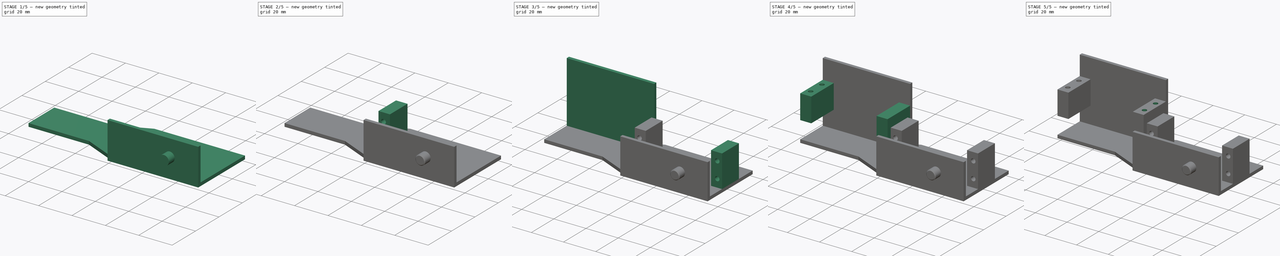
[diagram: build sequence overview — one tinted view per stage of 5, left to right]
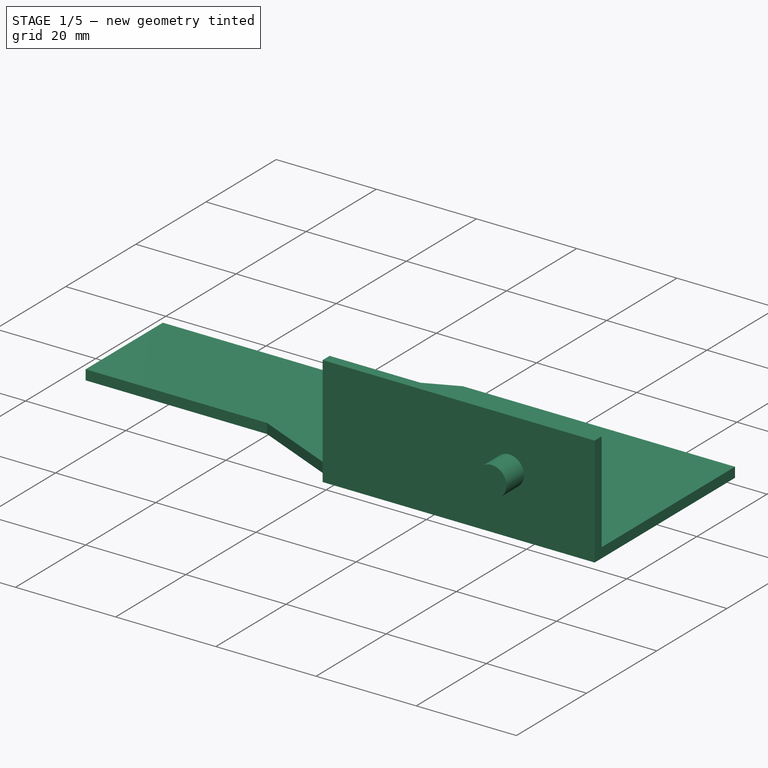
[diagram: stage 1 of 5 — iso view after this stage's code; geometry added in this stage tinted green]
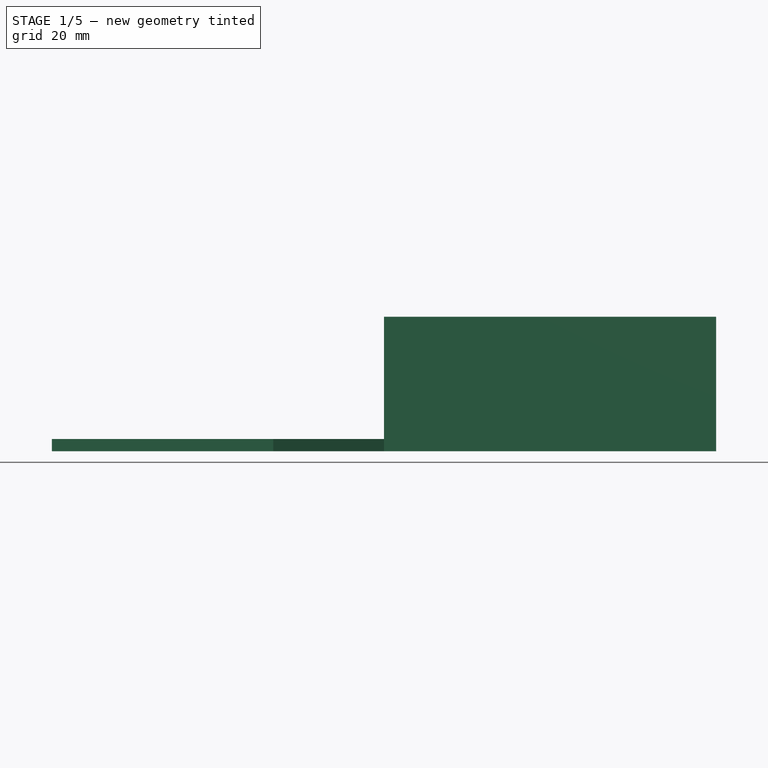
[diagram: stage 1 of 5 — front view after this stage's code; geometry added in this stage tinted green]
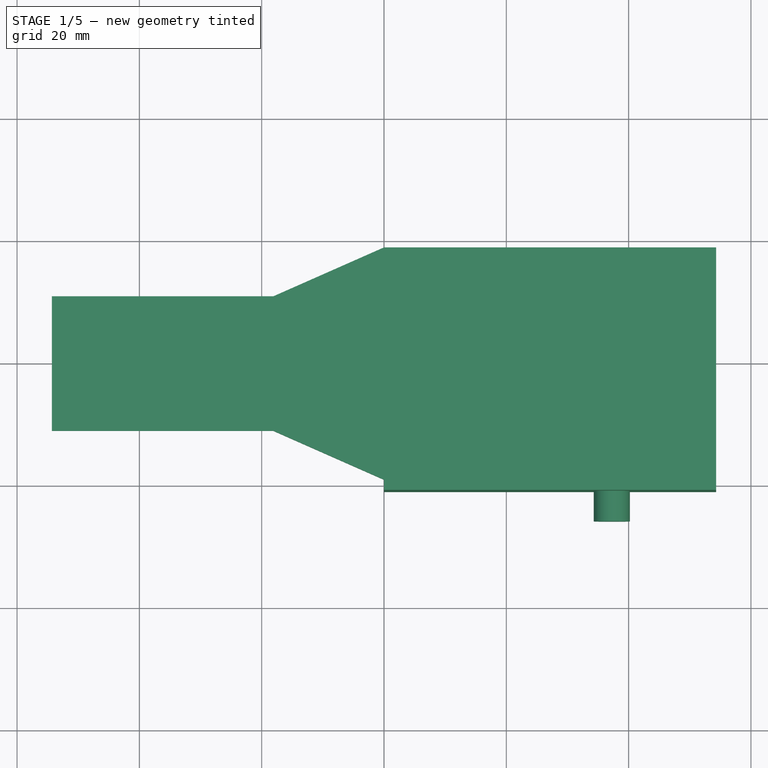
[diagram: stage 1 of 5 — top view after this stage's code; geometry added in this stage tinted green]
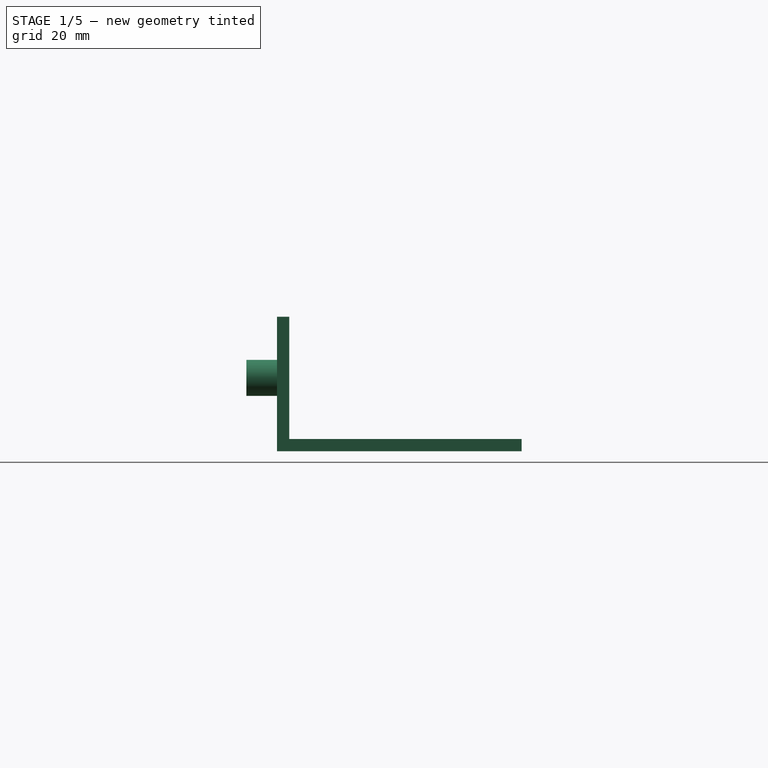
[diagram: stage 1 of 5 — right view after this stage's code; geometry added in this stage tinted green]
FCSTD DOCUMENT  (FreeCAD 0.20R29177 +426 (Git))
Label: 9R_upper_arm
License: All rights reserved
LicenseURL: http://en.wikipedia.org/wiki/All_rights_reserved
objects: Sketcher::SketchObject×13, PartDesign::Pad×9, PartDesign::Pocket×4, PartDesign::Chamfer×2, Spreadsheet::Sheet×1, PartDesign::Body×1
note: 44 computed .brp shape members not serialized (recipe doc carries the construction recipe); baked Part::Feature solids carry a one-line shape summary decoded from their .brp

FEATURE [Spreadsheet::Sheet] Spreadsheet
  cells = A1=tolerance; B1(tolerance)=0.2; A2=thickness; B2(thickness)=2; A3=servo_outer_x; B3(servo_outer_x)=54.3; A4=servo_inner_x; B4(servo_inner_x)=40.2; A5=servo_y; B5(servo_y)=38; D5=sketch 41,5 real 38,0; A6=servo_z; B6(servo_z)=20; A7=foothold_y_len; B7(foothold_y_len)=15; A8=foothold_y_pos; B8(foothold_y_pos)==25.8 + B2; C8=c; D8=sketch 27.8 real 25,1; A9=foothold_z_len; B9(foothold_z_len)==B6; C9=c; A10=foothold_x_len; B10(foothold_x_len)==(B3 - B4) / 2 - B1; C10=c; A11=upper_hole_z_pos; B11(upper_hole_z_pos)==15 + B2; C11=c; A12=lower_hole_z_pos; B12(lower_hole_z_pos)==5 + B2; C12=c; A13=hole_x_pos; B13(hole_x_pos)=3; A14=hole_diameter; B14(hole_diameter)=2.8; A15=axis_x_pos; B15(axis_x_pos)=37.25; A16=axis_z_pos; B16(axis_z_pos)==10 + B2; A17=axis_y_pos; B17(axis_y_pos)=0; A18=axis_diameter; B18(axis_diameter)=5.9; A19=axis_length; B19(axis_length)=5; A20=plate_y_dim; B20(plate_y_dim)==B5 + B2; C20=c
FEATURE [Sketcher::SketchObject] Sketch
  FullyConstrained = true
  MapMode = 5
  Support = -> [XY_Plane]
  expr: Constraints[12] = Spreadsheet.servo_outer_x
  expr: Constraints[14] = Spreadsheet.servo_y
  expr: Constraints[17] = Spreadsheet.servo_outer_x
  expr: Constraints[19] = Spreadsheet.servo_z + Spreadsheet.thickness
  expr: Constraints[21] = Spreadsheet.servo_outer_x / 3
  sketch-geometry (8):
    g0: LineSegment StartX=54.3 StartY=19 StartZ=0 EndX=54.3 EndY=-19 EndZ=0
    g1: LineSegment StartX=54.3 StartY=-19 StartZ=0 EndX=0 EndY=-19 EndZ=0
    g2: LineSegment StartX=0 StartY=-19 StartZ=0 EndX=-18.1 EndY=-11 EndZ=0
    g3: LineSegment StartX=-18.1 StartY=-11 StartZ=0 EndX=-54.3 EndY=-11 EndZ=0
    g4: LineSegment StartX=-54.3 StartY=-11 StartZ=0 EndX=-54.3 EndY=11 EndZ=0
    g5: LineSegment StartX=-54.3 StartY=11 StartZ=0 EndX=-18.1 EndY=11 EndZ=0
    g6: LineSegment StartX=-18.1 StartY=11 StartZ=0 EndX=0 EndY=19 EndZ=0
    g7: LineSegment StartX=0 StartY=19 StartZ=0 EndX=54.3 EndY=19 EndZ=0
  constraints (22):
    c: Coincident(g0,g1)
    c: Horizontal(g1)
    c: Coincident(g1,g2)
    c: Coincident(g2,g3)
    c: Horizontal(g3)
    c: Coincident(g3,g4)
    c: Coincident(g4,g5)
    c: Horizontal(g5)
    c: Coincident(g5,g6)
    c: Coincident(g6,g7)
    c: Coincident(g7,g0)
    c: Horizontal(g7)
    c: DistanceX(g7,g7) = 54.3
    c: Equal(g7,g1)
    c: DistanceY(g0,g0) = 38
    c: Symmetric(g0,g0,g-1)
    c: Vertical(g6,g-1)
    c: DistanceX(g4,g-1) = 54.3
    c: Symmetric(g4,g3,g-1)
    c: DistanceY(g3,g4) = 22
    c: Equal(g3,g5)
    c: DistanceX(g2,g1) = 18.1
FEATURE [PartDesign::Pad] Pad  label="BasePlate"
  Direction = (0,0,1)
  Length = 2
  Length2 = 10
  Profile = -> Sketch
  ReferenceAxis = -> Sketch [N_Axis]
  Type = 0
  expr: Length = Spreadsheet.thickness
FEATURE [Sketcher::SketchObject] Sketch002
  ExternalGeometry = -> [Pad]
  FullyConstrained = true
  MapMode = 5
  Placement = pos=(0,-19,0) rot=(1,0,0;1.5708rad)
  Support = -> [Pad]
  expr: Constraints[9] = Spreadsheet.servo_z + Spreadsheet.thickness
  sketch-geometry (4):
    g0: LineSegment StartX=0 StartY=0 StartZ=0 EndX=54.3 EndY=0 EndZ=0
    g1: LineSegment StartX=54.3 StartY=0 StartZ=0 EndX=54.3 EndY=22 EndZ=0
    g2: LineSegment StartX=54.3 StartY=22 StartZ=0 EndX=0 EndY=22 EndZ=0
    g3: LineSegment StartX=0 StartY=22 StartZ=0 EndX=0 EndY=0 EndZ=0
  constraints (10):
    c: Coincident(g0,g1)
    c: Coincident(g1,g2)
    c: Coincident(g2,g3)
    c: Coincident(g3,g0)
    c: Horizontal(g2)
    c: Vertical(g1)
    c: Vertical(g3)
    c: Coincident(g0,g-1)
    c: Coincident(g-3,g0)
    c: DistanceY(g1,g1) = 22
FEATURE [PartDesign::Pad] Pad001  label="LowerArmBackPlate"
  BaseFeature = -> Pad
  Direction = (0,-1,2e-16)
  Length = 2
  Length2 = 10
  Profile = -> Sketch002
  ReferenceAxis = -> Sketch002 [N_Axis]
  Type = 0
  expr: Length = Spreadsheet.thickness
FEATURE [Sketcher::SketchObject] Sketch003
  FullyConstrained = true
  MapMode = 5
  Placement = pos=(0,-21,3.4e-15) rot=(1,0,0;1.5708rad)
  Support = -> [Pad001]
  expr: Constraints[0] = Spreadsheet.axis_x_pos
  expr: Constraints[1] = Spreadsheet.axis_z_pos
  expr: Constraints[2] = Spreadsheet.axis_diameter
  sketch-geometry (1):
    g0: Circle CenterX=37.25 CenterY=12 CenterZ=0 NormalX=0 NormalY=0 NormalZ=1 AngleXU=0 Radius=2.95
  constraints (3):
    c: DistanceX(g-1,g0) = 37.25
    c: DistanceY(g-1,g0) = 12
    c: Diameter(g0) = 5.9
FEATURE [PartDesign::Pad] Pad002
  BaseFeature = -> Pad001
  Direction = (0,-1,2e-16)
  Length = 5
  Length2 = 10
  Profile = -> Sketch003
  ReferenceAxis = -> Sketch003 [N_Axis]
  Type = 0
  expr: Length = Spreadsheet.axis_length
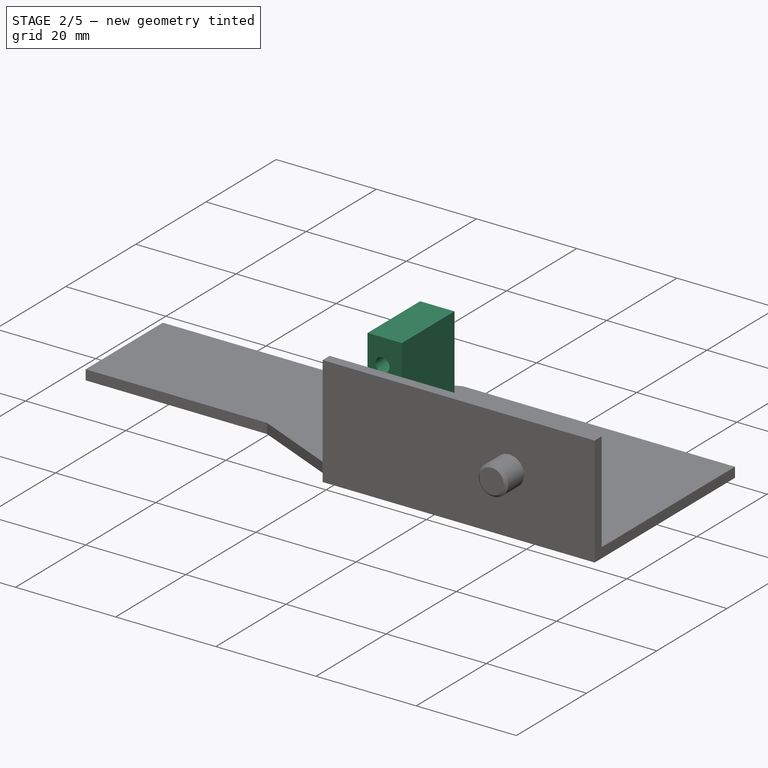
[diagram: stage 2 of 5 — iso view after this stage's code; geometry added in this stage tinted green]
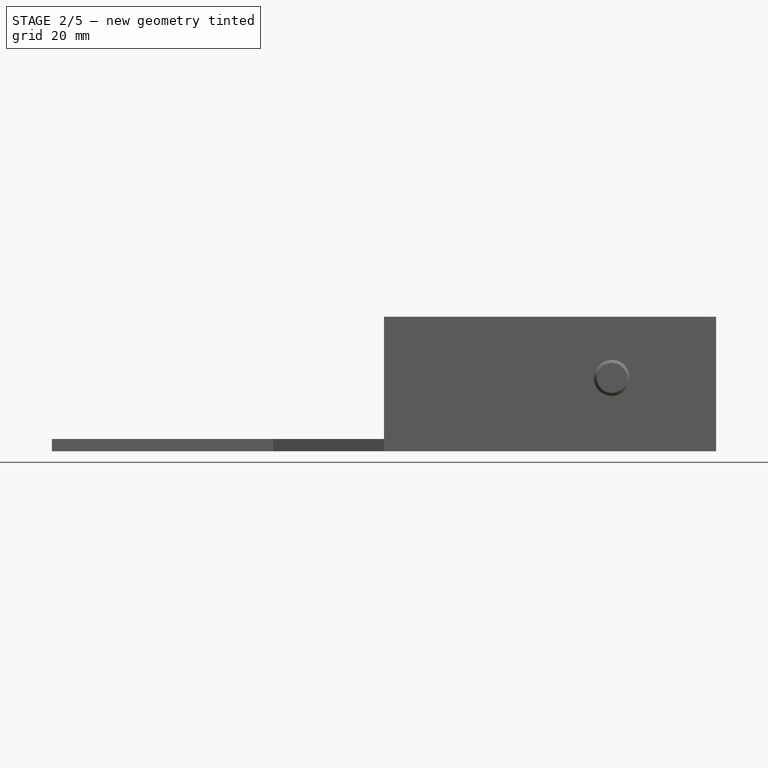
[diagram: stage 2 of 5 — front view after this stage's code; geometry added in this stage tinted green]
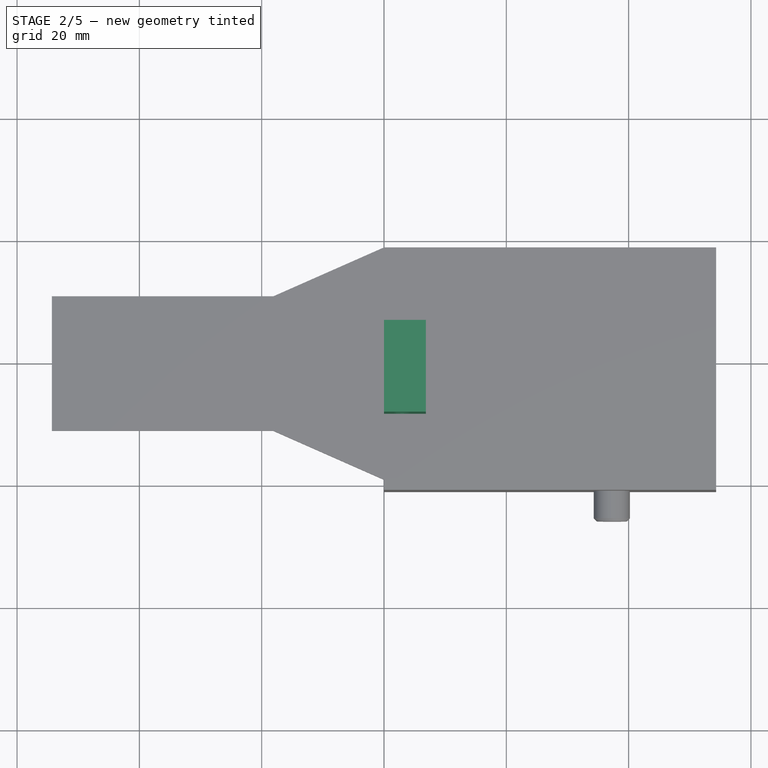
[diagram: stage 2 of 5 — top view after this stage's code; geometry added in this stage tinted green]
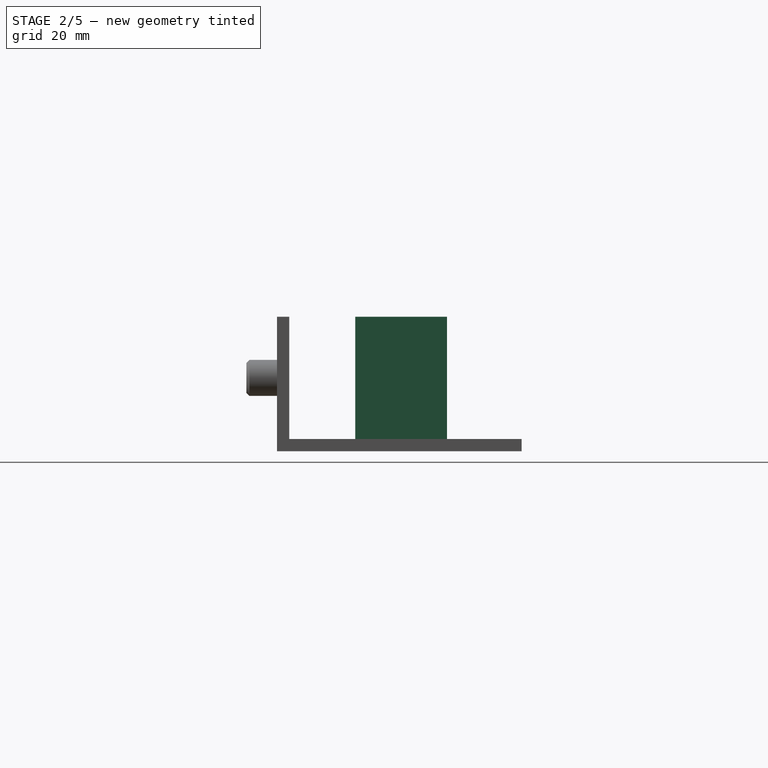
[diagram: stage 2 of 5 — right view after this stage's code; geometry added in this stage tinted green]
FEATURE [PartDesign::Chamfer] Chamfer
  Angle = 45
  Base = -> Pad002 [Face17]
  BaseFeature = -> Pad002
  ChamferType = 0
  FlipDirection = false
  Size = 0.5
  Size2 = 1
  SupportTransform = false
  UseAllEdges = false
FEATURE [Sketcher::SketchObject] Sketch004
  ExternalGeometry = -> [Chamfer]
  FullyConstrained = true
  MapMode = 5
  Placement = pos=(0,0,2) rot=(0,0,1;0rad)
  Support = -> [Chamfer]
  expr: Constraints[10] = Spreadsheet.foothold_y_len
  expr: Constraints[11] = Spreadsheet.foothold_x_len
  expr: Constraints[9] = Spreadsheet.foothold_y_pos
  sketch-geometry (4):
    g0: LineSegment StartX=0 StartY=6.8 StartZ=0 EndX=6.85 EndY=6.8 EndZ=0
    g1: LineSegment StartX=6.85 StartY=6.8 StartZ=0 EndX=6.85 EndY=-8.2 EndZ=0
    g2: LineSegment StartX=6.85 StartY=-8.2 StartZ=0 EndX=0 EndY=-8.2 EndZ=0
    g3: LineSegment StartX=0 StartY=-8.2 StartZ=0 EndX=0 EndY=6.8 EndZ=0
  constraints (12):
    c: Coincident(g0,g1)
    c: Coincident(g1,g2)
    c: Coincident(g2,g3)
    c: Coincident(g3,g0)
    c: Horizontal(g0)
    c: Horizontal(g2)
    c: Vertical(g1)
    c: Vertical(g3)
    c: PointOnObject(g0,g-2)
    c: DistanceY(g-3,g0) = 27.8
    c: DistanceY(g2,g0) = 15
    c: DistanceX(g0,g0) = 6.85
FEATURE [PartDesign::Pad] Pad003
  BaseFeature = -> Chamfer
  Direction = (0,0,1)
  Length = 20
  Length2 = 10
  Profile = -> Sketch004
  ReferenceAxis = -> Sketch004 [N_Axis]
  Type = 0
  expr: Length = Spreadsheet.foothold_z_len
FEATURE [Sketcher::SketchObject] Sketch005
  FullyConstrained = true
  MapMode = 5
  Placement = pos=(0,6.8,0) rot=(0,0.707107,0.707107;3.14159rad)
  Support = -> [Pad003]
  expr: Constraints[0] = Spreadsheet.lower_hole_z_pos
  expr: Constraints[1] = Spreadsheet.upper_hole_z_pos
  expr: Constraints[2] = Spreadsheet.hole_x_pos
  expr: Constraints[5] = Spreadsheet.hole_diameter
  sketch-geometry (2):
    g0: Circle CenterX=-3 CenterY=17 CenterZ=0 NormalX=0 NormalY=0 NormalZ=1 AngleXU=0 Radius=1.4
    g1: Circle CenterX=-3 CenterY=7 CenterZ=0 NormalX=0 NormalY=0 NormalZ=1 AngleXU=0 Radius=1.4
  constraints (6):
    c: DistanceY(g-1,g1) = 7
    c: DistanceY(g-1,g0) = 17
    c: DistanceX(g1,g-1) = 3
    c: Vertical(g1,g0)
    c: Equal(g0,g1)
    c: Diameter(g0) = 2.8
FEATURE [PartDesign::Pocket] Pocket
  BaseFeature = -> Pad003
  Direction = (0,-1,2e-16)
  Length = 15
  Length2 = 5
  Profile = -> Sketch005
  ReferenceAxis = -> Sketch005 [N_Axis]
  Type = 0
  expr: Length = Spreadsheet.foothold_y_len
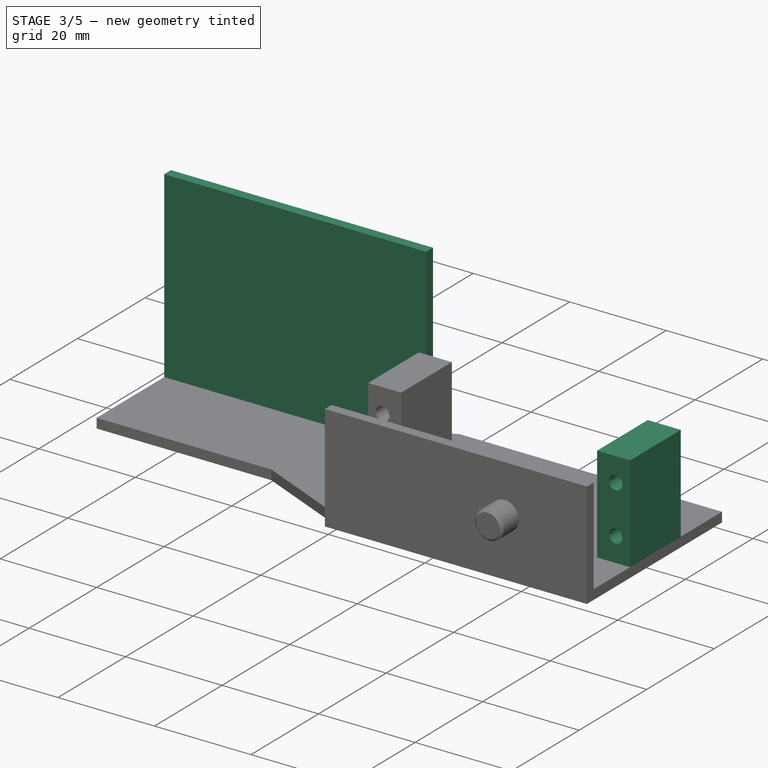
[diagram: stage 3 of 5 — iso view after this stage's code; geometry added in this stage tinted green]
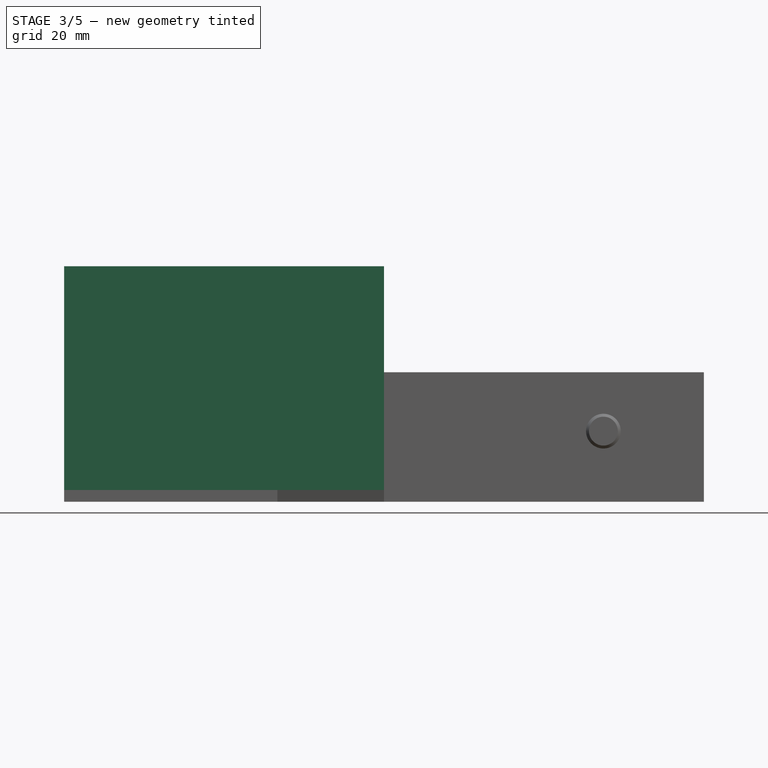
[diagram: stage 3 of 5 — front view after this stage's code; geometry added in this stage tinted green]
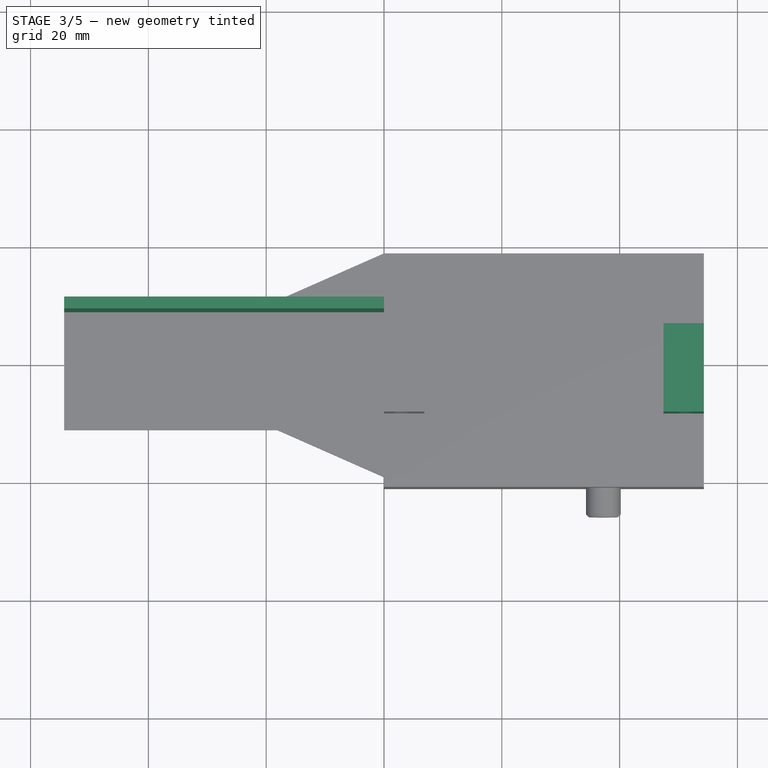
[diagram: stage 3 of 5 — top view after this stage's code; geometry added in this stage tinted green]
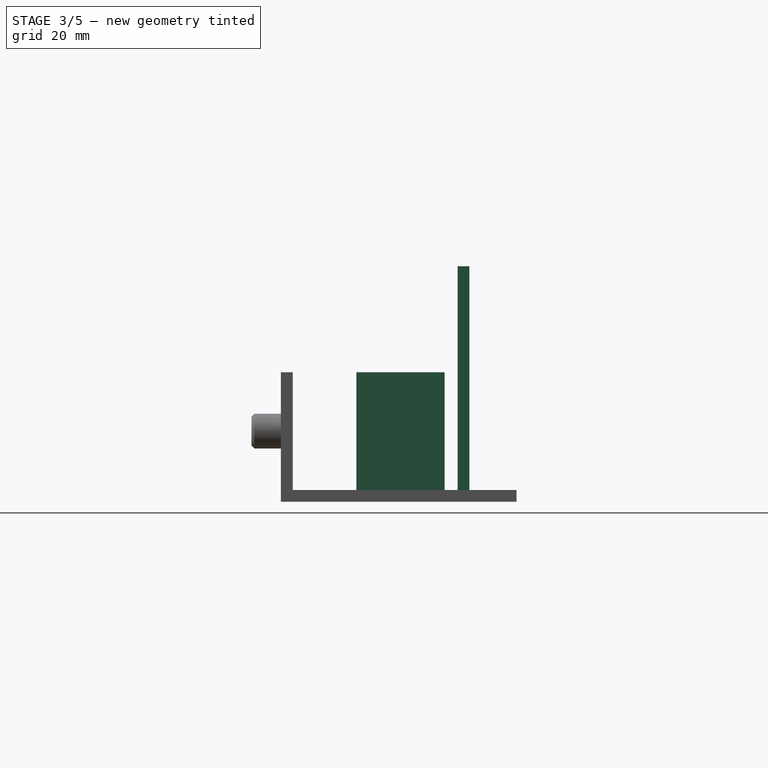
[diagram: stage 3 of 5 — right view after this stage's code; geometry added in this stage tinted green]
FEATURE [Sketcher::SketchObject] Sketch006
  ExternalGeometry = -> [Pocket]
  FullyConstrained = true
  MapMode = 5
  Placement = pos=(0,0,2) rot=(0,0,1;0rad)
  Support = -> [Pocket]
  expr: Constraints[10] = Spreadsheet.foothold_y_len
  expr: Constraints[11] = Spreadsheet.foothold_x_len
  expr: Constraints[9] = Spreadsheet.foothold_y_pos
  sketch-geometry (4):
    g0: LineSegment StartX=47.45 StartY=6.8 StartZ=0 EndX=54.3 EndY=6.8 EndZ=0
    g1: LineSegment StartX=54.3 StartY=6.8 StartZ=0 EndX=54.3 EndY=-8.2 EndZ=0
    g2: LineSegment StartX=54.3 StartY=-8.2 StartZ=0 EndX=47.45 EndY=-8.2 EndZ=0
    g3: LineSegment StartX=47.45 StartY=-8.2 StartZ=0 EndX=47.45 EndY=6.8 EndZ=0
  constraints (12):
    c: Coincident(g0,g1)
    c: Coincident(g1,g2)
    c: Coincident(g2,g3)
    c: Coincident(g3,g0)
    c: Horizontal(g0)
    c: Horizontal(g2)
    c: Vertical(g1)
    c: Vertical(g3)
    c: PointOnObject(g0,g-4)
    c: DistanceY(g-3,g0) = 27.8
    c: DistanceY(g2,g0) = 15
    c: DistanceX(g2,g1) = 6.85
FEATURE [PartDesign::Pad] Pad004
  BaseFeature = -> Pocket
  Direction = (0,0,1)
  Length = 20
  Length2 = 10
  Profile = -> Sketch006
  ReferenceAxis = -> Sketch006 [N_Axis]
  Type = 0
  expr: Length = Spreadsheet.servo_z
FEATURE [Sketcher::SketchObject] Sketch007
  ExternalGeometry = -> [Pad004]
  FullyConstrained = true
  MapMode = 5
  Placement = pos=(0,6.8,0) rot=(0,0.707107,0.707107;3.14159rad)
  Support = -> [Pad004]
  expr: Constraints[2] = Spreadsheet.hole_diameter
  expr: Constraints[3] = Spreadsheet.hole_x_pos
  expr: Constraints[4] = Spreadsheet.lower_hole_z_pos
  expr: Constraints[5] = Spreadsheet.upper_hole_z_pos
  sketch-geometry (2):
    g0: Circle CenterX=-51.3 CenterY=17 CenterZ=0 NormalX=0 NormalY=0 NormalZ=1 AngleXU=0 Radius=1.4
    g1: Circle CenterX=-51.3 CenterY=7 CenterZ=0 NormalX=0 NormalY=0 NormalZ=1 AngleXU=0 Radius=1.4
  constraints (6):
    c: Vertical(g0,g1)
    c: Equal(g0,g1)
    c: Diameter(g0) = 2.8
    c: DistanceX(g-3,g1) = 3
    c: DistanceY(g-3,g1) = 7
    c: DistanceY(g-3,g0) = 17
FEATURE [PartDesign::Pocket] Pocket001
  BaseFeature = -> Pad004
  Direction = (0,-1,2e-16)
  Length = 15
  Length2 = 5
  Profile = -> Sketch007
  ReferenceAxis = -> Sketch007 [N_Axis]
  Type = 0
  expr: Length = Spreadsheet.foothold_y_len
FEATURE [Sketcher::SketchObject] Sketch008
  ExternalGeometry = -> [Pocket001]
  FullyConstrained = true
  MapMode = 5
  Placement = pos=(0,0,2) rot=(0,0,1;0rad)
  Support = -> [Pocket001]
  expr: Constraints[10] = Spreadsheet.thickness
  sketch-geometry (4):
    g0: LineSegment StartX=-54.3 StartY=11 StartZ=0 EndX=0 EndY=11 EndZ=0
    g1: LineSegment StartX=0 StartY=11 StartZ=0 EndX=0 EndY=9 EndZ=0
    g2: LineSegment StartX=0 StartY=9 StartZ=0 EndX=-54.3 EndY=9 EndZ=0
    g3: LineSegment StartX=-54.3 StartY=9 StartZ=0 EndX=-54.3 EndY=11 EndZ=0
  constraints (11):
    c: Coincident(g0,g1)
    c: Coincident(g1,g2)
    c: Coincident(g2,g3)
    c: Coincident(g3,g0)
    c: Horizontal(g0)
    c: Horizontal(g2)
    c: Vertical(g1)
    c: Vertical(g3)
    c: Coincident(g0,g-3)
    c: Vertical(g1,g-1)
    c: DistanceY(g1,g0) = 2
FEATURE [PartDesign::Pad] Pad005
  BaseFeature = -> Pocket001
  Direction = (0,0,1)
  Length = 38
  Length2 = 10
  Profile = -> Sketch008
  ReferenceAxis = -> Sketch008 [N_Axis]
  Type = 0
  expr: Length = Spreadsheet.servo_y
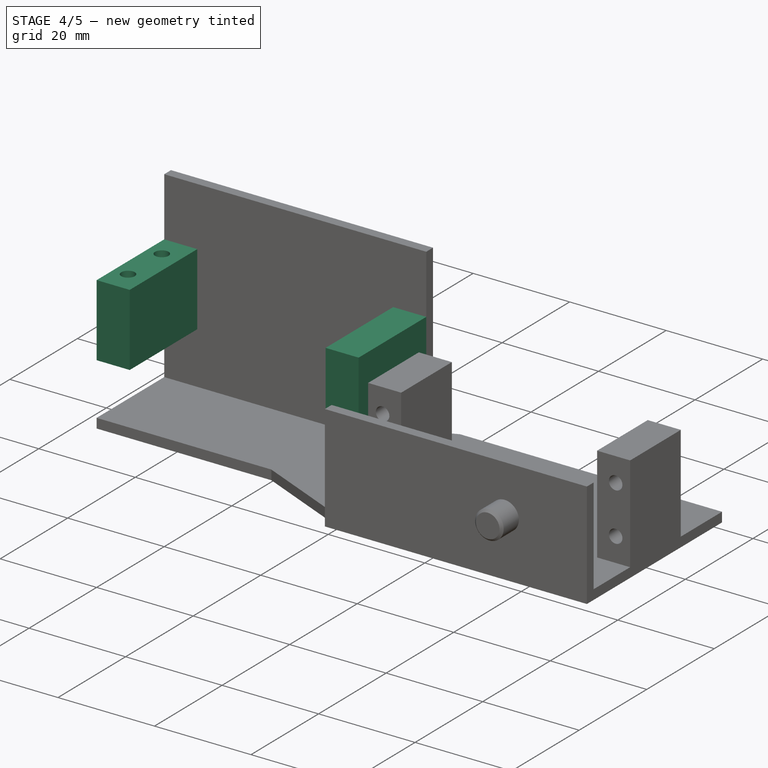
[diagram: stage 4 of 5 — iso view after this stage's code; geometry added in this stage tinted green]
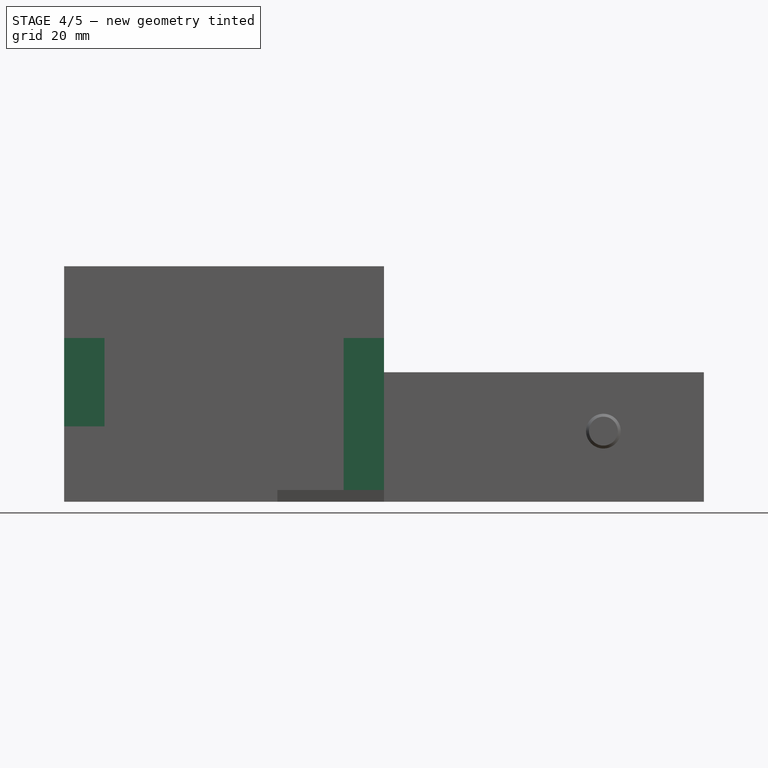
[diagram: stage 4 of 5 — front view after this stage's code; geometry added in this stage tinted green]
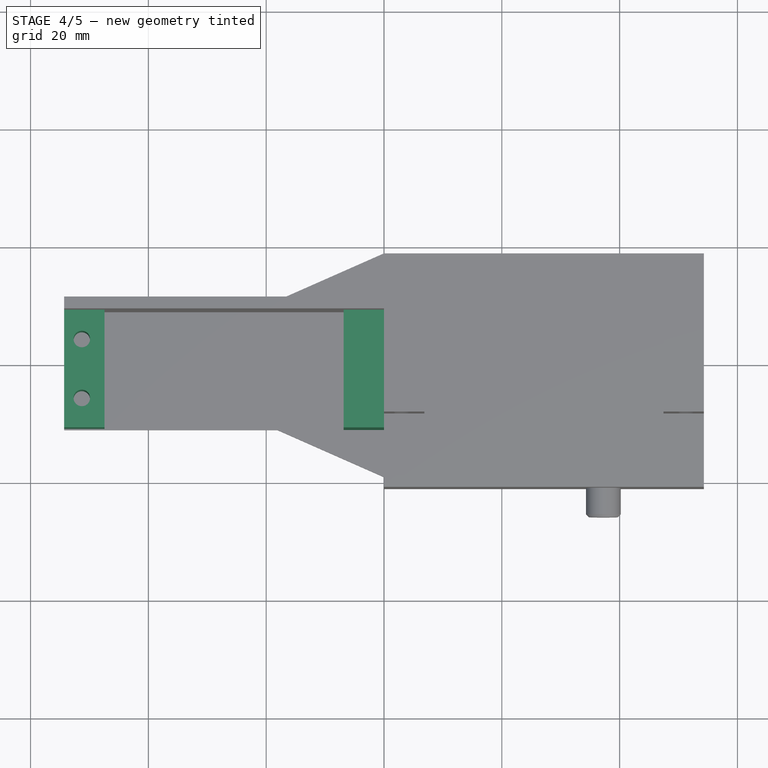
[diagram: stage 4 of 5 — top view after this stage's code; geometry added in this stage tinted green]
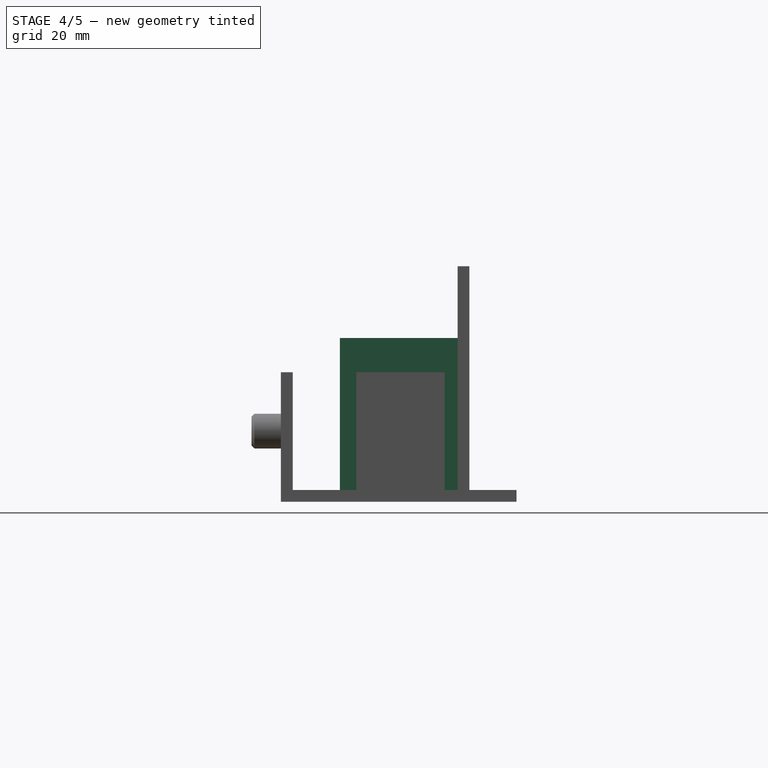
[diagram: stage 4 of 5 — right view after this stage's code; geometry added in this stage tinted green]
FEATURE [Sketcher::SketchObject] Sketch009
  ExternalGeometry = -> [Pad005]
  FullyConstrained = true
  MapMode = 5
  Placement = pos=(0,9,0) rot=(1,0,0;1.5708rad)
  Support = -> [Pad005]
  expr: Constraints[10] = Spreadsheet.foothold_y_len
  expr: Constraints[11] = Spreadsheet.foothold_x_len
  expr: Constraints[9] = Spreadsheet.foothold_y_pos
  sketch-geometry (4):
    g0: LineSegment StartX=-54.3 StartY=27.8 StartZ=0 EndX=-47.45 EndY=27.8 EndZ=0
    g1: LineSegment StartX=-47.45 StartY=27.8 StartZ=0 EndX=-47.45 EndY=12.8 EndZ=0
    g2: LineSegment StartX=-47.45 StartY=12.8 StartZ=0 EndX=-54.3 EndY=12.8 EndZ=0
    g3: LineSegment StartX=-54.3 StartY=12.8 StartZ=0 EndX=-54.3 EndY=27.8 EndZ=0
  constraints (12):
    c: Coincident(g0,g1)
    c: Coincident(g1,g2)
    c: Coincident(g2,g3)
    c: Coincident(g3,g0)
    c: Horizontal(g0)
    c: Horizontal(g2)
    c: Vertical(g1)
    c: Vertical(g3)
    c: Vertical(g-3,g2)
    c: DistanceY(g-3,g0) = 27.8
    c: DistanceY(g2,g0) = 15
    c: DistanceX(g0,g0) = 6.85
FEATURE [PartDesign::Pad] Pad006
  BaseFeature = -> Pad005
  Direction = (0,-1,2e-16)
  Length = 20
  Length2 = 10
  Profile = -> Sketch009
  ReferenceAxis = -> Sketch009 [N_Axis]
  Type = 0
  expr: Length = Spreadsheet.servo_z
FEATURE [Sketcher::SketchObject] Sketch010
  ExternalGeometry = -> [Pad006]
  FullyConstrained = true
  MapMode = 5
  Placement = pos=(0,6.2e-15,27.8) rot=(0,0,1;0rad)
  Support = -> [Pad006]
  expr: Constraints[1] = Spreadsheet.hole_x_pos
  expr: Constraints[3] = Spreadsheet.hole_diameter
  expr: Constraints[4] = Spreadsheet.lower_hole_z_pos
  expr: Constraints[5] = Spreadsheet.upper_hole_z_pos
  sketch-geometry (2):
    g0: Circle CenterX=-51.3 CenterY=-6 CenterZ=0 NormalX=0 NormalY=0 NormalZ=1 AngleXU=0 Radius=1.4
    g1: Circle CenterX=-51.3 CenterY=4 CenterZ=0 NormalX=0 NormalY=0 NormalZ=1 AngleXU=0 Radius=1.4
  constraints (6):
    c: Vertical(g0,g1)
    c: DistanceX(g-3,g1) = 3
    c: Equal(g0,g1)
    c: Diameter(g0) = 2.8
    c: DistanceY(g1,g-3) = 7
    c: DistanceY(g0,g-3) = 17
FEATURE [PartDesign::Pocket] Pocket002
  BaseFeature = -> Pad006
  Direction = (0,-2e-16,-1)
  Length = 15
  Length2 = 5
  Profile = -> Sketch010
  ReferenceAxis = -> Sketch010 [N_Axis]
  Type = 0
  expr: Length = Spreadsheet.foothold_y_len
FEATURE [Sketcher::SketchObject] Sketch011
  FullyConstrained = true
  MapMode = 5
  Placement = pos=(0,9,0) rot=(1,0,0;1.5708rad)
  Support = -> [Pocket002]
  expr: Constraints[10] = Spreadsheet.foothold_y_pos
  expr: Constraints[11] = Spreadsheet.thickness
  expr: Constraints[9] = Spreadsheet.foothold_x_len
  sketch-geometry (4):
    g0: LineSegment StartX=-6.85 StartY=27.8 StartZ=0 EndX=0 EndY=27.8 EndZ=0
    g1: LineSegment StartX=0 StartY=27.8 StartZ=0 EndX=0 EndY=2 EndZ=0
    g2: LineSegment StartX=0 StartY=2 StartZ=0 EndX=-6.85 EndY=2 EndZ=0
    g3: LineSegment StartX=-6.85 StartY=2 StartZ=0 EndX=-6.85 EndY=27.8 EndZ=0
  constraints (12):
    c: Coincident(g0,g1)
    c: Coincident(g1,g2)
    c: Coincident(g2,g3)
    c: Coincident(g3,g0)
    c: Horizontal(g0)
    c: Horizontal(g2)
    c: Vertical(g1)
    c: Vertical(g3)
    c: Vertical(g1,g-1)
    c: DistanceX(g0,g0) = 6.85
    c: DistanceY(g-1,g0) = 27.8
    c: DistanceY(g-1,g1) = 2
FEATURE [PartDesign::Pad] Pad007
  BaseFeature = -> Pocket002
  Direction = (0,-1,2e-16)
  Length = 20
  Length2 = 10
  Profile = -> Sketch011
  ReferenceAxis = -> Sketch011 [N_Axis]
  Type = 0
  expr: Length = Spreadsheet.foothold_z_len
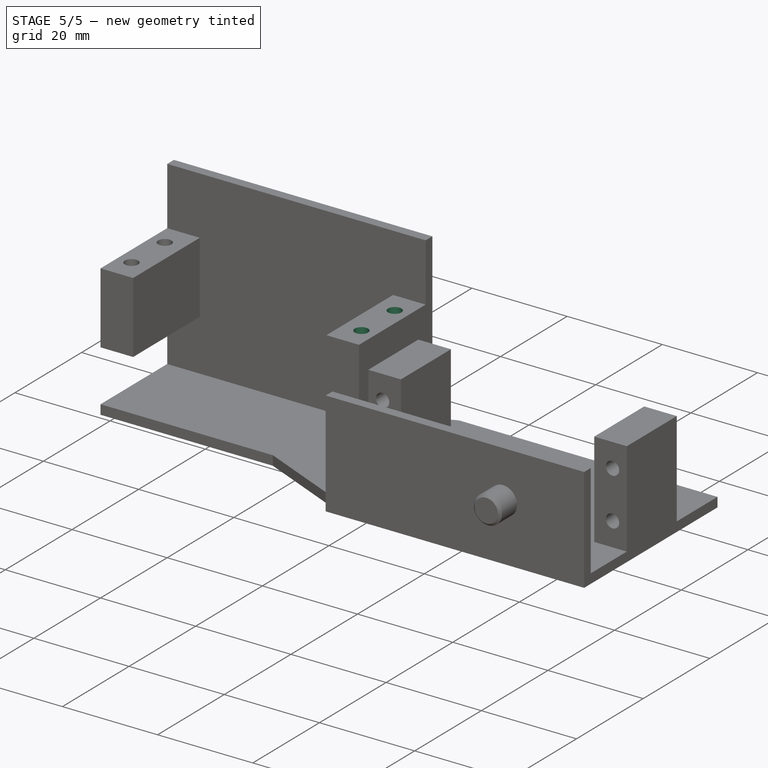
[diagram: stage 5 of 5 — iso view after this stage's code; geometry added in this stage tinted green]
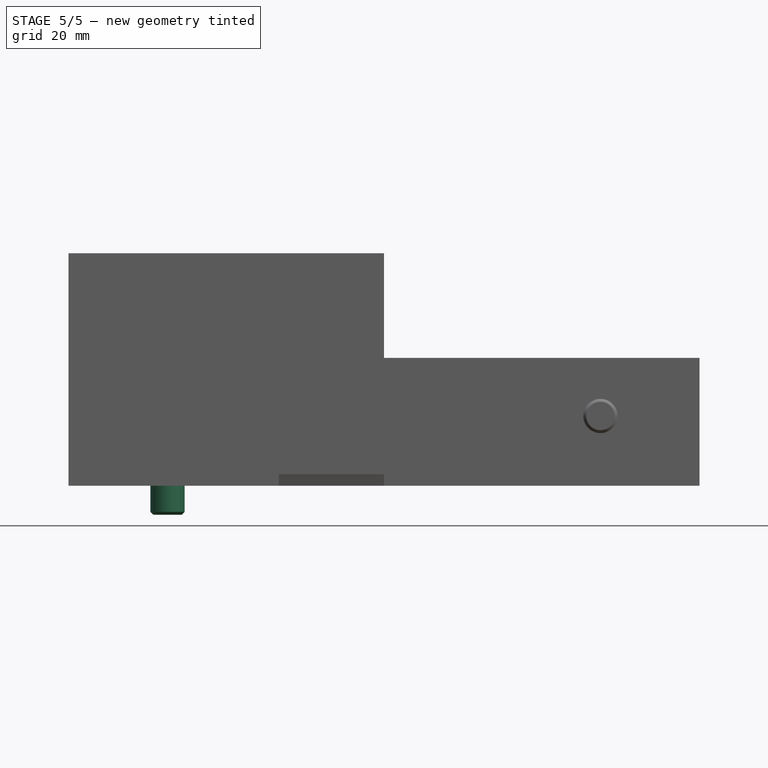
[diagram: stage 5 of 5 — front view after this stage's code; geometry added in this stage tinted green]
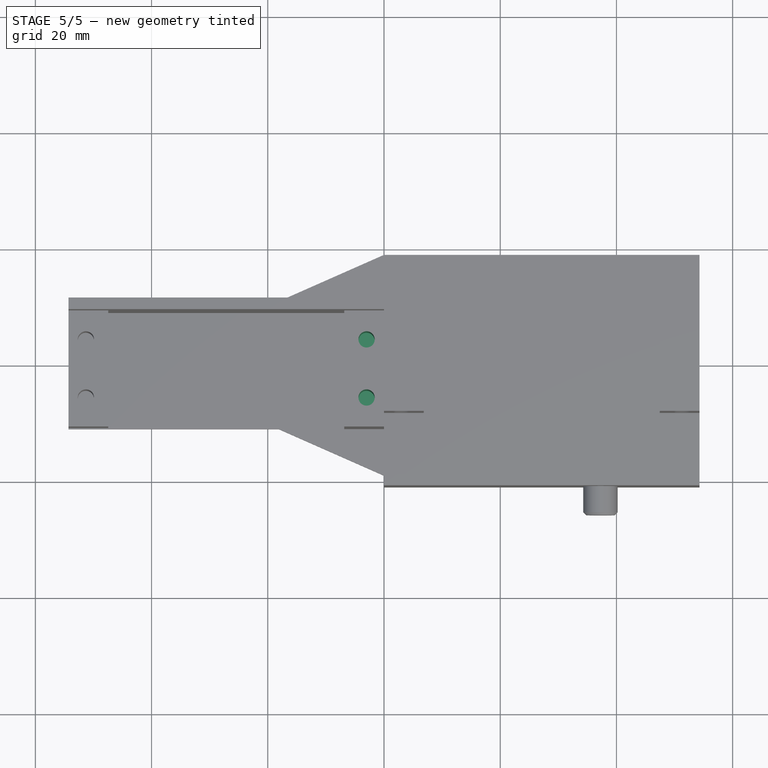
[diagram: stage 5 of 5 — top view after this stage's code; geometry added in this stage tinted green]
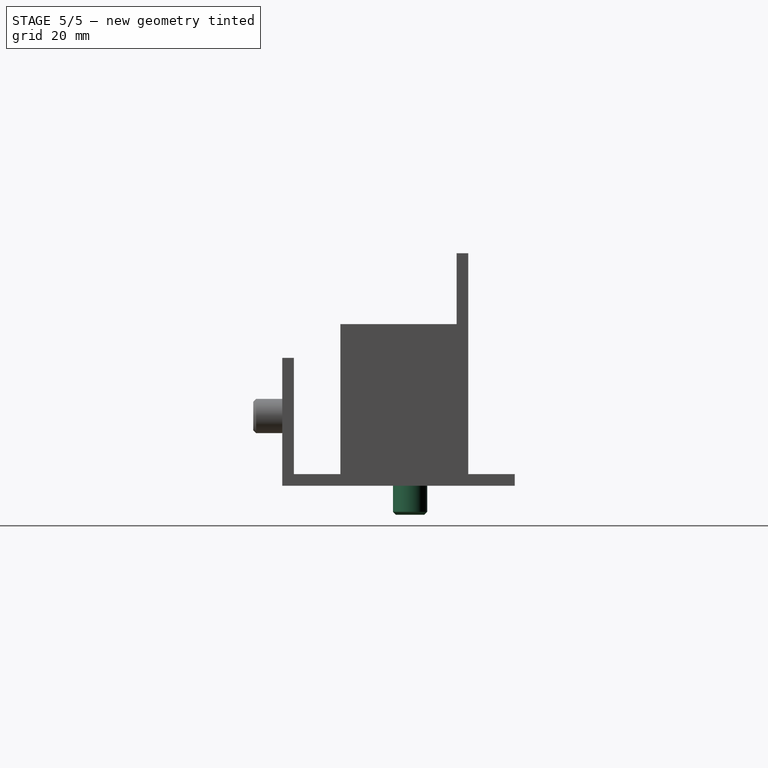
[diagram: stage 5 of 5 — right view after this stage's code; geometry added in this stage tinted green]
FEATURE [Sketcher::SketchObject] Sketch012
  ExternalGeometry = -> [Pad007]
  FullyConstrained = true
  MapMode = 5
  Placement = pos=(0,6.2e-15,27.8) rot=(0,0,1;0rad)
  Support = -> [Pad007]
  expr: Constraints[1] = Spreadsheet.hole_diameter
  expr: Constraints[3] = Spreadsheet.hole_x_pos
  expr: Constraints[4] = Spreadsheet.lower_hole_z_pos
  expr: Constraints[5] = Spreadsheet.upper_hole_z_pos
  sketch-geometry (2):
    g0: Circle CenterX=-3 CenterY=-6 CenterZ=0 NormalX=0 NormalY=0 NormalZ=1 AngleXU=0 Radius=1.4
    g1: Circle CenterX=-3 CenterY=4 CenterZ=0 NormalX=0 NormalY=0 NormalZ=1 AngleXU=0 Radius=1.4
  constraints (6):
    c: Equal(g0,g1)
    c: Diameter(g0) = 2.8
    c: Vertical(g1,g0)
    c: DistanceX(g1,g-3) = 3
    c: DistanceY(g1,g-3) = 7
    c: DistanceY(g0,g-3) = 17
FEATURE [PartDesign::Pocket] Pocket003
  BaseFeature = -> Pad007
  Direction = (0,-2e-16,-1)
  Length = 15
  Length2 = 5
  Profile = -> Sketch012
  ReferenceAxis = -> Sketch012 [N_Axis]
  Type = 0
  expr: Length = Spreadsheet.foothold_y_len
FEATURE [Sketcher::SketchObject] Sketch013
  ExternalGeometry = -> [Pocket003]
  FullyConstrained = true
  MapMode = 5
  Placement = pos=(0,0,0) rot=(1,0,0;3.14159rad)
  Support = -> [Pocket003]
  expr: Constraints[0] = Spreadsheet.axis_x_pos
  expr: Constraints[1] = Spreadsheet.axis_z_pos
  expr: Constraints[2] = Spreadsheet.axis_diameter
  sketch-geometry (1):
    g0: Circle CenterX=-37.25 CenterY=-1 CenterZ=0 NormalX=0 NormalY=0 NormalZ=1 AngleXU=0 Radius=2.95
  constraints (3):
    c: DistanceX(g0,g-5) = 37.25
    c: DistanceY(g0,g-4) = 12
    c: Diameter(g0) = 5.9
FEATURE [PartDesign::Pad] Pad008
  BaseFeature = -> Pocket003
  Direction = (0,0,-1)
  Length = 5
  Length2 = 10
  Profile = -> Sketch013
  ReferenceAxis = -> Sketch013 [N_Axis]
  Type = 0
  expr: Length = Spreadsheet.axis_length
FEATURE [PartDesign::Chamfer] Chamfer001
  Angle = 45
  Base = -> Pad008 [Face23]
  BaseFeature = -> Pad008
  ChamferType = 0
  FlipDirection = false
  Size = 0.5
  Size2 = 1
  SupportTransform = false
  UseAllEdges = false
FEATURE [PartDesign::Body] Body
  Group = -> [Sketch,Pad,Sketch002,Pad001,Sketch003,Pad002,Chamfer,Sketch004,Pad003,Sketch005,Pocket,Sketch006,Pad004,Sketch007,Pocket001,Sketch008,Pad005,Sketch009,Pad006,Sketch010,Pocket002,Sketch011,Pad007,Sketch012,Pocket003,Sketch013,Pad008,Chamfer001]
  Origin = -> Origin
  Tip = -> Chamfer001
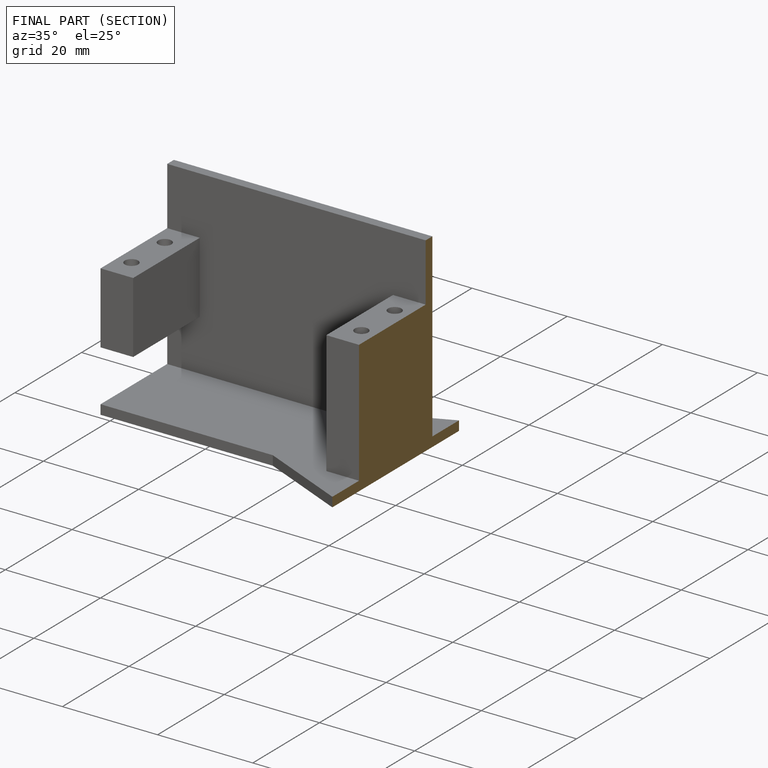
[diagram: finished part — half-section view (interior)]
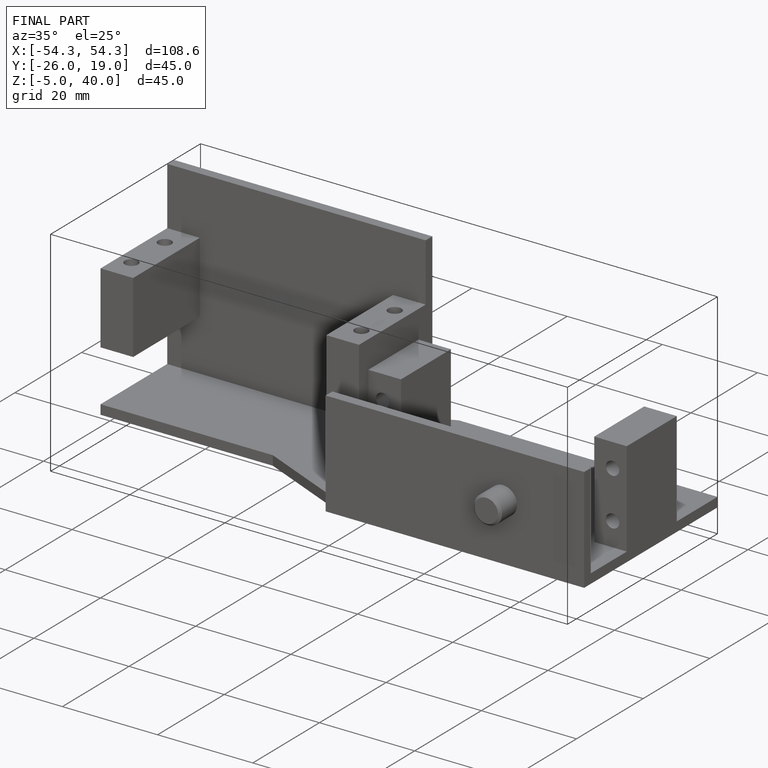
[diagram: finished part — iso view with bounding-box wireframe]
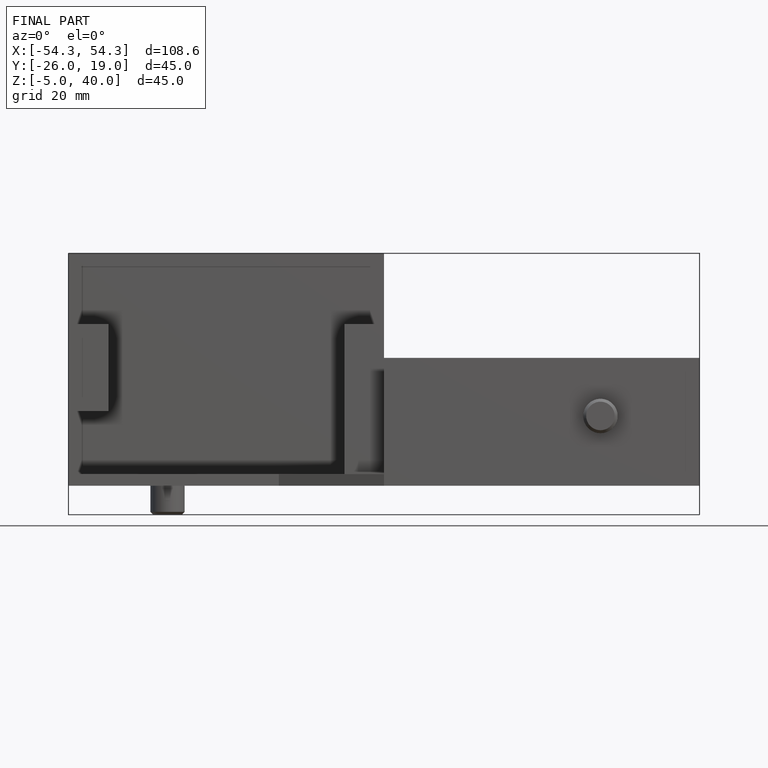
[diagram: finished part — front view with bounding-box wireframe]
